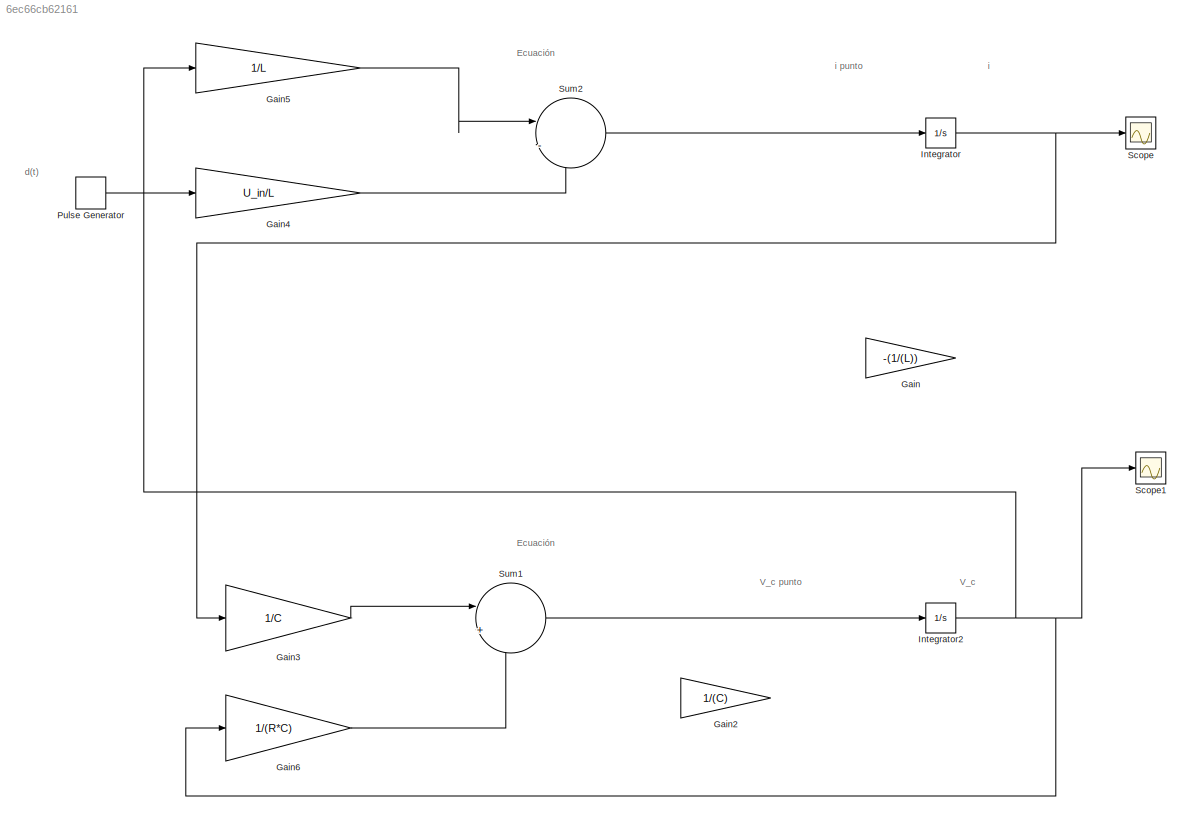
MODEL slx_6ec66cb62161
KIND model
CONFIG AbsTol = auto
CONFIG EnableMultiTasking = off
CONFIG FixedStep = auto
CONFIG InitFcn = R=10;\nL=0.002;\nC=10e-6;\nU_in = 32;\n
CONFIG MaxStep = auto
CONFIG MinStep = auto
CONFIG RelTol = 1e-3
CONFIG SampleTimeConstraint = Unconstrained
CONFIG SolverName = ode45
CONFIG StartTime = 0.0
CONFIG StopTime = 0.002
BLOCK [Gain] Gain
  Gain = -(1/(L))
BLOCK [Gain] Gain2
  Gain = 1/(C)
BLOCK [Gain] Gain3
  Gain = 1/C
BLOCK [Gain] Gain4
  Gain = U_in/L
BLOCK [Gain] Gain5
  Gain = 1/L
BLOCK [Gain] Gain6
  Gain = 1/(R*C)
BLOCK [Integrator] Integrator
BLOCK [Integrator] Integrator2
BLOCK [DiscretePulseGenerator] Pulse Generator
  Period = 1/(100e3)
  PulseType = Time based
  PulseWidth = 40
BLOCK [Scope] Scope
  ActiveDisplayYMaximum = 1.5580842373948807
  ActiveDisplayYMinimum = -0.17312047082165338
  Floating = off
  GraphicalSettings = {"Style":{"BackgroundColor":[0.12941176470588237,0.12941176470588237,0.12941176470588237],"AxesColor":[0.07058823529411765,0.07058823529411765,0.07058823529411765],"LabelsColor":[0.8509803921568627,0.8509803921568627,0.8509803921568627],"PreserveColors":false,"Visible":[true],"LineStyle":["-"],"LineWidth":[1.5],"BarWidth":[0.9],"LineColor":["auto"],"LineFaceAlpha":[1],"LineEdgeAlpha":[1],"Marker":...<+2006ch>
  MultipleDisplayCache = [{"MaxYLimMag":1.5580842373948807,"MaxYLimReal":1.5580842373948807,"MinYLimMag":0,"MinYLimReal":-0.17312047082165338,"PlotAsMagnitudePhase":false,"ShowGrid":true,"ShowLegend":false,"Title":"%<SignalLabel>","YLabel":""}]
  NumInputPorts = 1
  ScopeFrameLocation = window
  WasSavedAsWebScope = on
  WindowPosition = [233.000000,504.000000,560.000000,417.000000,]
BLOCK [Scope] Scope1
  ActiveDisplayYMaximum = 15.021686885894953
  ActiveDisplayYMinimum = -1.6690763206549943
  DataLoggingVariableName = ScopeData1
  Floating = off
  GraphicalSettings = {"Style":{"BackgroundColor":[0.12941176470588237,0.12941176470588237,0.12941176470588237],"AxesColor":[0.07058823529411765,0.07058823529411765,0.07058823529411765],"LabelsColor":[0.8509803921568627,0.8509803921568627,0.8509803921568627],"PreserveColors":false,"Visible":[true],"LineStyle":["-"],"LineWidth":[1.5],"BarWidth":[0.9],"LineColor":["auto"],"LineFaceAlpha":[1],"LineEdgeAlpha":[1],"Marker":...<+2006ch>
  MultipleDisplayCache = [{"MaxYLimMag":15.021686885894953,"MaxYLimReal":15.021686885894953,"MinYLimMag":0,"MinYLimReal":-1.6690763206549943,"PlotAsMagnitudePhase":false,"ShowGrid":true,"ShowLegend":false,"Title":"%<SignalLabel>","YLabel":""}]
  NumInputPorts = 1
  ScopeFrameLocation = window
  WasSavedAsWebScope = on
  WindowPosition = [228.000000,69.000000,560.000000,420.000000,]
BLOCK [Sum] Sum1
  Inputs = |+-
BLOCK [Sum] Sum2
  Inputs = |-+
ANNOTATION (root): i punto
ANNOTATION (root): V_c
ANNOTATION (root): Ecuación
ANNOTATION (root): V_c punto
ANNOTATION (root): d(t)
ANNOTATION (root): i
LINE Gain3:1 -> Sum1:1
LINE Gain4:1 -> Sum2:2
LINE Gain5:1 -> Sum2:1
LINE Gain6:1 -> Sum1:2
NET Integrator2:1 -> Gain5:1, Gain6:1, Scope1:1
NET Integrator:1 -> Gain3:1, Scope:1
LINE Pulse Generator:1 -> Gain4:1
LINE Sum1:1 -> Integrator2:1
LINE Sum2:1 -> Integrator:1
note: NET lines group one-source signal fan-out (src -> all destinations, sorted); 1:1 wires keep LINE
